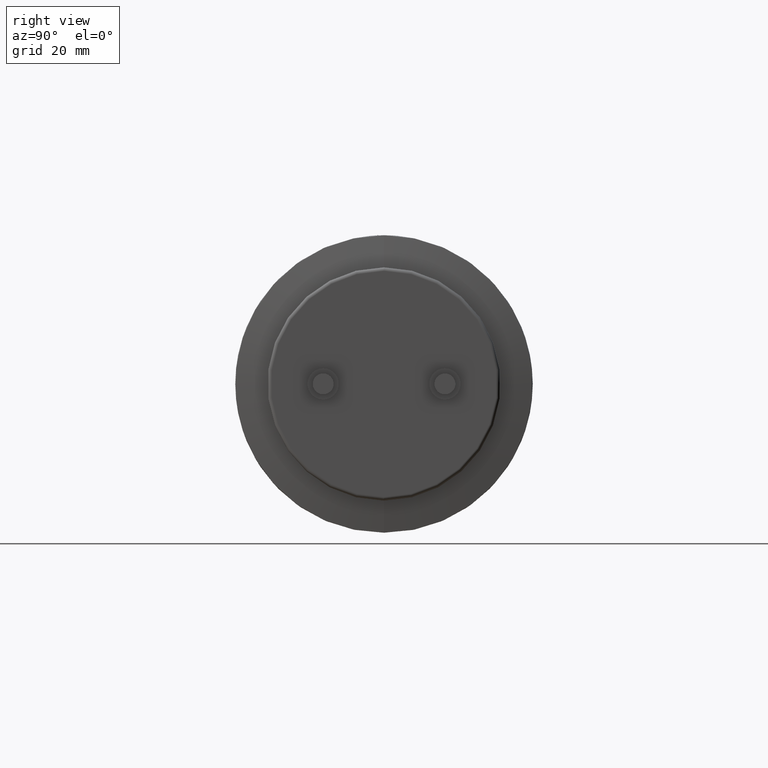
[diagram: clean part render]
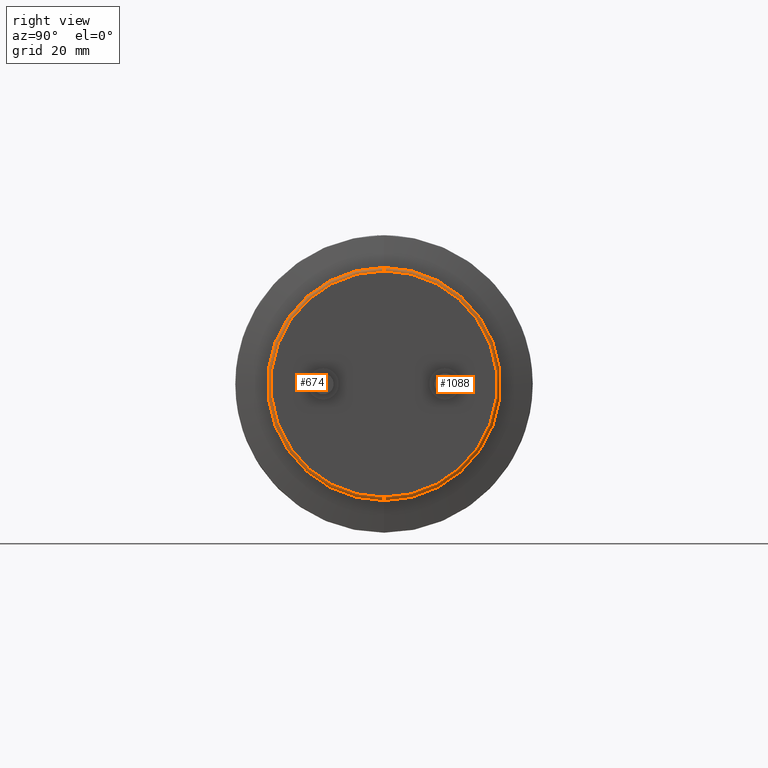
[diagram: same view with one multi-face feature highlighted, each face labeled with its STEP entity id]
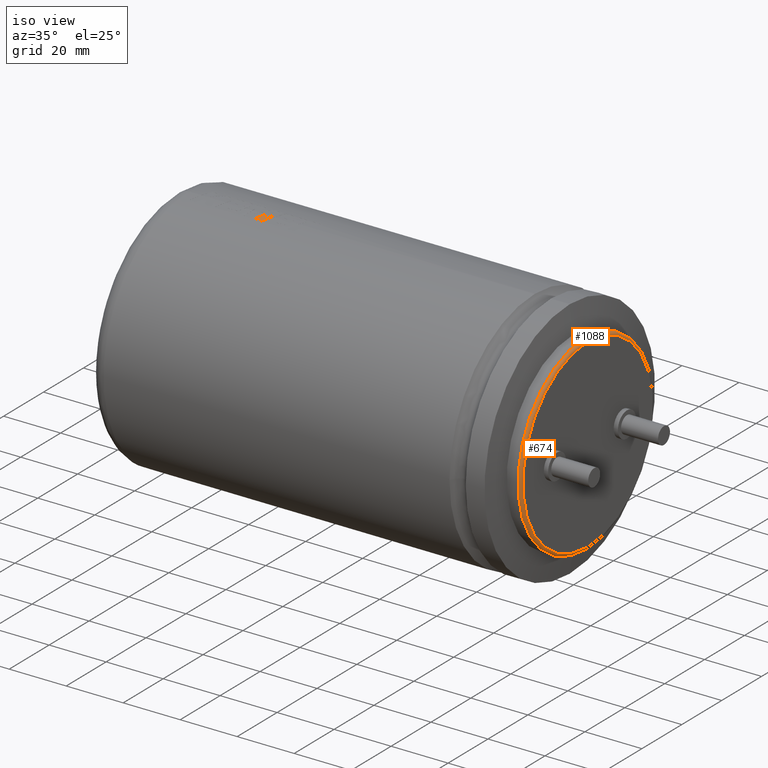
[diagram: same view with one multi-face feature highlighted, each face labeled with its STEP entity id]
A machine part, right view. The highlighted faces form ONE feature: a constant-radius fillet chain: 2 tangent blend faces with common blend radius 1 mm. The faces share edges in the B-rep.
A second angle (iso view) of the same feature is appended — it is thin or edge-on in the first view.
Their STEP definitions:
[1] entity #1088 (Torus):
#98 = CARTESIAN_POINT ( 'NONE',  ( 144.0000000000000300, 0.0000000000000000000, 0.0000000000000000000 ) ) ;
#162 = DIRECTION ( 'NONE',  ( 0.0000000000000000000, 1.224646799147349500E-016, 1.000000000000000000 ) ) ;
#257 = EDGE_CURVE ( 'NONE', #3835, #2411, #1503, .T. ) ;
#282 = EDGE_CURVE ( 'NONE', #3835, #347, #2663, .T. ) ;
#325 = DIRECTION ( 'NONE',  ( 0.0000000000000000000, -1.000000000000000000, 0.0000000000000000000 ) ) ;
#335 = CARTESIAN_POINT ( 'NONE',  ( 145.0000000000000300, 0.0000000000000000000, 0.0000000000000000000 ) ) ;
#347 = VERTEX_POINT ( 'NONE', #2977 ) ;
#472 = AXIS2_PLACEMENT_3D ( 'NONE', #1826, #3644, #162 ) ;
#513 = EDGE_CURVE ( 'NONE', #2248, #347, #671, .T. ) ;
#616 = CIRCLE ( 'NONE', #2257, 1.000000000000000900 ) ;
#652 = DIRECTION ( 'NONE',  ( 1.000000000000000000, 0.0000000000000000000, 0.0000000000000000000 ) ) ;
#671 = CIRCLE ( 'NONE', #2222, 32.52882499999999800 ) ;
#716 = DIRECTION ( 'NONE',  ( 0.0000000000000000000, 0.0000000000000000000, -1.000000000000000000 ) ) ;
#916 = DIRECTION ( 'NONE',  ( 0.0000000000000000000, 0.0000000000000000000, -1.000000000000000000 ) ) ;
#956 = TOROIDAL_SURFACE ( 'NONE', #3161, 32.52882499999999800, 1.000000000000000000 ) ;
#1055 = AXIS2_PLACEMENT_3D ( 'NONE', #98, #2734, #2039 ) ;
#1088 = ADVANCED_FACE ( 'NONE', ( #3671 ), #956, .T. ) ;
#1106 = CARTESIAN_POINT ( 'NONE',  ( 145.0000000000000300, 0.0000000000000000000, -32.52882499999999800 ) ) ;
#1467 = EDGE_CURVE ( 'NONE', #2411, #2248, #616, .T. ) ;
#1503 = CIRCLE ( 'NONE', #1055, 33.52882499999999800 ) ;
#1578 = ORIENTED_EDGE ( 'NONE', *, *, #257, .F. ) ;
#1614 = ORIENTED_EDGE ( 'NONE', *, *, #282, .T. ) ;
#1826 = CARTESIAN_POINT ( 'NONE',  ( 144.0000000000000300, 3.983632141627439800E-015, 32.52882499999999800 ) ) ;
#1919 = DIRECTION ( 'NONE',  ( 1.000000000000000000, 0.0000000000000000000, 0.0000000000000000000 ) ) ;
#2039 = DIRECTION ( 'NONE',  ( 0.0000000000000000000, 0.0000000000000000000, -1.000000000000000000 ) ) ;
#2170 = CARTESIAN_POINT ( 'NONE',  ( 144.0000000000000300, 0.0000000000000000000, 33.52882499999999800 ) ) ;
#2222 = AXIS2_PLACEMENT_3D ( 'NONE', #335, #1919, #716 ) ;
#2248 = VERTEX_POINT ( 'NONE', #1106 ) ;
#2257 = AXIS2_PLACEMENT_3D ( 'NONE', #3379, #325, #916 ) ;
#2411 = VERTEX_POINT ( 'NONE', #3987 ) ;
#2663 = CIRCLE ( 'NONE', #472, 1.000000000000000900 ) ;
#2734 = DIRECTION ( 'NONE',  ( -1.000000000000000000, -0.0000000000000000000, -0.0000000000000000000 ) ) ;
#2829 = DIRECTION ( 'NONE',  ( 0.0000000000000000000, 0.0000000000000000000, -1.000000000000000000 ) ) ;
#2977 = CARTESIAN_POINT ( 'NONE',  ( 145.0000000000000300, 4.044864481584807400E-015, 32.52882499999999800 ) ) ;
#3114 = ORIENTED_EDGE ( 'NONE', *, *, #513, .F. ) ;
#3161 = AXIS2_PLACEMENT_3D ( 'NONE', #3477, #652, #2829 ) ;
#3315 = ORIENTED_EDGE ( 'NONE', *, *, #1467, .F. ) ;
#3379 = CARTESIAN_POINT ( 'NONE',  ( 144.0000000000000300, 0.0000000000000000000, -32.52882499999999800 ) ) ;
#3477 = CARTESIAN_POINT ( 'NONE',  ( 144.0000000000000300, 0.0000000000000000000, 0.0000000000000000000 ) ) ;
#3602 = EDGE_LOOP ( 'NONE', ( #1578, #1614, #3114, #3315 ) ) ;
#3644 = DIRECTION ( 'NONE',  ( 0.0000000000000000000, 1.000000000000000000, -1.224646799147353200E-016 ) ) ;
#3671 = FACE_OUTER_BOUND ( 'NONE', #3602, .T. ) ;
#3835 = VERTEX_POINT ( 'NONE', #2170 ) ;
#3987 = CARTESIAN_POINT ( 'NONE',  ( 144.0000000000000300, 4.106096821542174900E-015, -33.52882499999999800 ) ) ;
[2] entity #674 (Torus):
#162 = DIRECTION ( 'NONE',  ( 0.0000000000000000000, 1.224646799147349500E-016, 1.000000000000000000 ) ) ;
#252 = CARTESIAN_POINT ( 'NONE',  ( 145.0000000000000300, 0.0000000000000000000, 0.0000000000000000000 ) ) ;
#282 = EDGE_CURVE ( 'NONE', #3835, #347, #2663, .T. ) ;
#325 = DIRECTION ( 'NONE',  ( 0.0000000000000000000, -1.000000000000000000, 0.0000000000000000000 ) ) ;
#347 = VERTEX_POINT ( 'NONE', #2977 ) ;
#472 = AXIS2_PLACEMENT_3D ( 'NONE', #1826, #3644, #162 ) ;
#494 = CARTESIAN_POINT ( 'NONE',  ( 144.0000000000000300, 0.0000000000000000000, 0.0000000000000000000 ) ) ;
#559 = DIRECTION ( 'NONE',  ( -1.000000000000000000, -0.0000000000000000000, -0.0000000000000000000 ) ) ;
#616 = CIRCLE ( 'NONE', #2257, 1.000000000000000900 ) ;
#674 = ADVANCED_FACE ( 'NONE', ( #2287 ), #1655, .T. ) ;
#916 = DIRECTION ( 'NONE',  ( 0.0000000000000000000, 0.0000000000000000000, -1.000000000000000000 ) ) ;
#932 = EDGE_CURVE ( 'NONE', #347, #2248, #3771, .T. ) ;
#1028 = AXIS2_PLACEMENT_3D ( 'NONE', #252, #3385, #3995 ) ;
#1106 = CARTESIAN_POINT ( 'NONE',  ( 145.0000000000000300, 0.0000000000000000000, -32.52882499999999800 ) ) ;
#1199 = DIRECTION ( 'NONE',  ( 0.0000000000000000000, 0.0000000000000000000, -1.000000000000000000 ) ) ;
#1389 = ORIENTED_EDGE ( 'NONE', *, *, #932, .F. ) ;
#1462 = DIRECTION ( 'NONE',  ( 0.0000000000000000000, 0.0000000000000000000, -1.000000000000000000 ) ) ;
#1467 = EDGE_CURVE ( 'NONE', #2411, #2248, #616, .T. ) ;
#1655 = TOROIDAL_SURFACE ( 'NONE', #2516, 32.52882499999999800, 1.000000000000000000 ) ;
#1824 = ORIENTED_EDGE ( 'NONE', *, *, #282, .F. ) ;
#1826 = CARTESIAN_POINT ( 'NONE',  ( 144.0000000000000300, 3.983632141627439800E-015, 32.52882499999999800 ) ) ;
#2170 = CARTESIAN_POINT ( 'NONE',  ( 144.0000000000000300, 0.0000000000000000000, 33.52882499999999800 ) ) ;
#2230 = AXIS2_PLACEMENT_3D ( 'NONE', #3071, #559, #1199 ) ;
#2248 = VERTEX_POINT ( 'NONE', #1106 ) ;
#2257 = AXIS2_PLACEMENT_3D ( 'NONE', #3379, #325, #916 ) ;
#2287 = FACE_OUTER_BOUND ( 'NONE', #3502, .T. ) ;
#2355 = EDGE_CURVE ( 'NONE', #2411, #3835, #3036, .T. ) ;
#2411 = VERTEX_POINT ( 'NONE', #3987 ) ;
#2516 = AXIS2_PLACEMENT_3D ( 'NONE', #494, #3908, #1462 ) ;
#2663 = CIRCLE ( 'NONE', #472, 1.000000000000000900 ) ;
#2876 = ORIENTED_EDGE ( 'NONE', *, *, #2355, .F. ) ;
#2977 = CARTESIAN_POINT ( 'NONE',  ( 145.0000000000000300, 4.044864481584807400E-015, 32.52882499999999800 ) ) ;
#3036 = CIRCLE ( 'NONE', #2230, 33.52882499999999800 ) ;
#3071 = CARTESIAN_POINT ( 'NONE',  ( 144.0000000000000300, 0.0000000000000000000, 0.0000000000000000000 ) ) ;
#3253 = ORIENTED_EDGE ( 'NONE', *, *, #1467, .T. ) ;
#3379 = CARTESIAN_POINT ( 'NONE',  ( 144.0000000000000300, 0.0000000000000000000, -32.52882499999999800 ) ) ;
#3385 = DIRECTION ( 'NONE',  ( 1.000000000000000000, 0.0000000000000000000, 0.0000000000000000000 ) ) ;
#3502 = EDGE_LOOP ( 'NONE', ( #1824, #2876, #3253, #1389 ) ) ;
#3644 = DIRECTION ( 'NONE',  ( 0.0000000000000000000, 1.000000000000000000, -1.224646799147353200E-016 ) ) ;
#3771 = CIRCLE ( 'NONE', #1028, 32.52882499999999800 ) ;
#3835 = VERTEX_POINT ( 'NONE', #2170 ) ;
#3908 = DIRECTION ( 'NONE',  ( 1.000000000000000000, 0.0000000000000000000, 0.0000000000000000000 ) ) ;
#3987 = CARTESIAN_POINT ( 'NONE',  ( 144.0000000000000300, 4.106096821542174900E-015, -33.52882499999999800 ) ) ;
#3995 = DIRECTION ( 'NONE',  ( 0.0000000000000000000, 0.0000000000000000000, -1.000000000000000000 ) ) ;